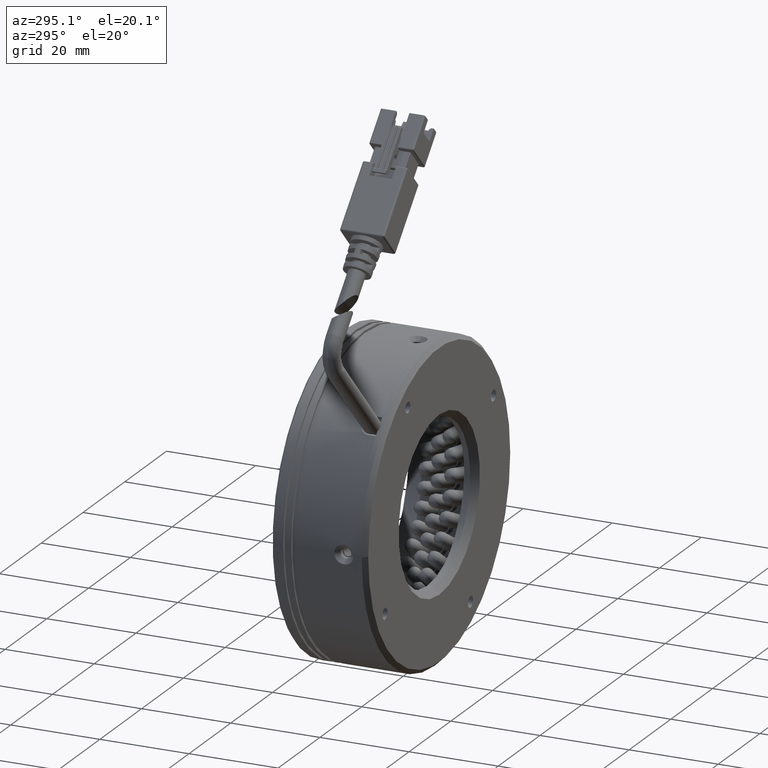
[diagram: clean part render]
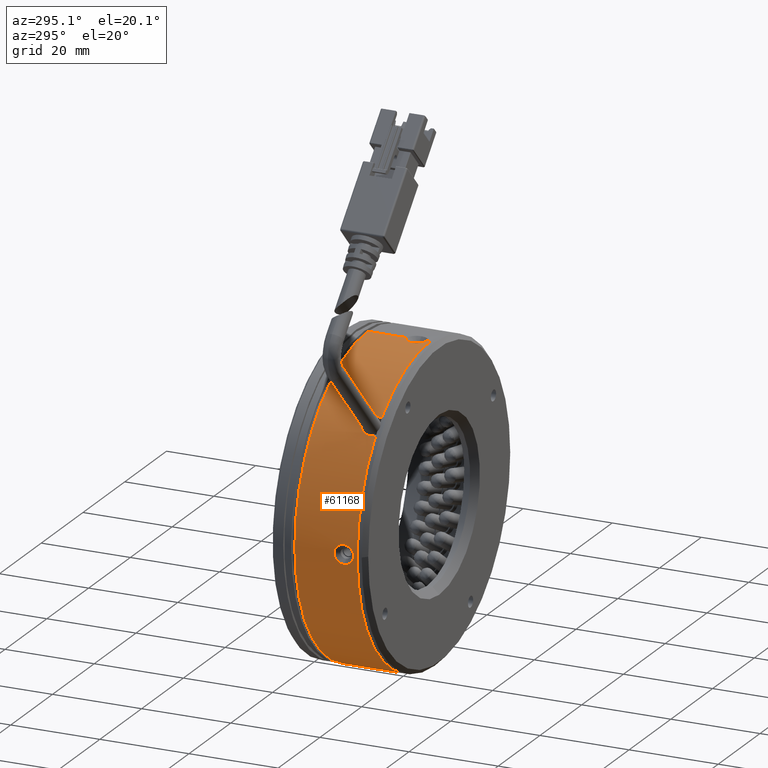
[diagram: same view with one face highlighted and labeled with its STEP entity id]
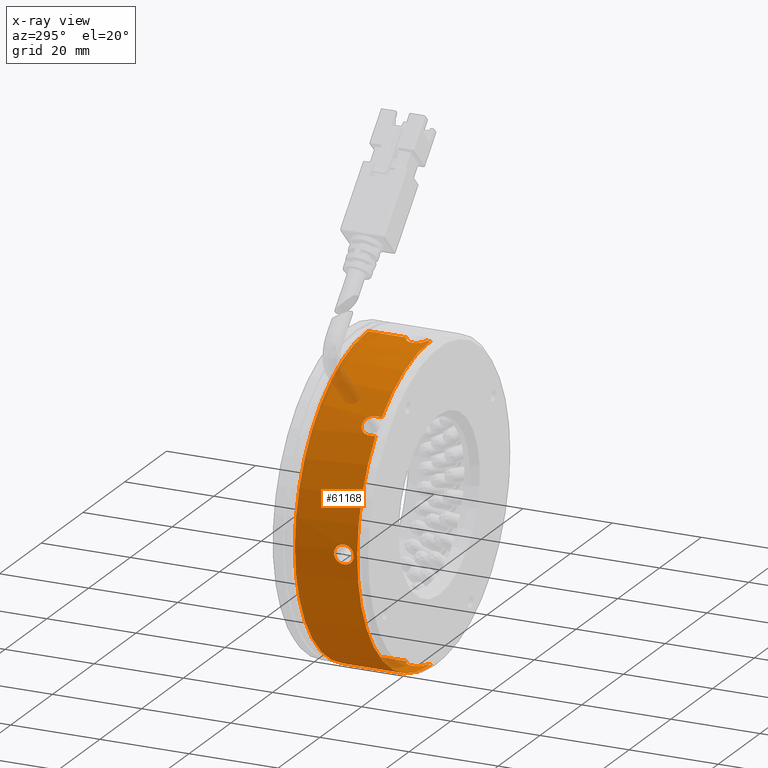
[diagram: x-ray of the same camera — body ghosted, the highlighted face saturated]
A machine part, auxiliary view. The second image highlights one B-rep face of the part: STEP entity #61168.
The next image is the same camera in x-ray: the body ghosted, the highlighted face saturated — about 4% of this face is hidden behind the body in this view.
In plain terms, the highlighted cylindrical surface (partial cylindrical patch) has radius 35 mm, axis along (-0, -1, -0).
Its self-contained STEP definition (entity closure, byte-faithful):
#425 = CARTESIAN_POINT ( 'NONE',  ( -62.36686726495298700, -21.10478920740880300, 11.24595865287460100 ) ) ;
#994 = CARTESIAN_POINT ( 'NONE',  ( -62.07319593178989700, -21.03700290820240700, 11.54561089932319900 ) ) ;
#1125 = CARTESIAN_POINT ( 'NONE',  ( -62.17191088425483500, -21.05049272272526700, 11.44567870108063400 ) ) ;
#1171 = CARTESIAN_POINT ( 'NONE',  ( -37.22376356038466100, -23.93693679049722800, -48.10242548494798600 ) ) ;
#1209 = CARTESIAN_POINT ( 'NONE',  ( -72.20782325663832100, -23.65190471292516600, -12.01498249379077500 ) ) ;
#1425 = CARTESIAN_POINT ( 'NONE',  ( -37.78478417546927700, -19.60932852830506700, -48.09820310293105200 ) ) ;
#1549 = CARTESIAN_POINT ( 'NONE',  ( -72.18648156479508800, -23.17898133300633700, -14.72045267900322300 ) ) ;
#1599 = CARTESIAN_POINT ( 'NONE',  ( -62.46222385914966000, -21.14567528577140400, 11.14705329127196600 ) ) ;
#1816 = CARTESIAN_POINT ( 'NONE',  ( -62.73295926011513000, -21.30475847788848800, 10.86316091381639400 ) ) ;
#1980 = DIRECTION ( 'NONE',  ( -0.0000000000000000000, -1.000000000000000000, -0.0000000000000000000 ) ) ;
#2971 = DIRECTION ( 'NONE',  ( 0.0000000000000000000, 1.000000000000000000, 0.0000000000000000000 ) ) ;
#3202 = AXIS2_PLACEMENT_3D ( 'NONE', #42261, #98484, #50412 ) ;
#3374 = CARTESIAN_POINT ( 'NONE',  ( -72.21701431307143100, -19.65340967446399400, -13.80181309716154400 ) ) ;
#3560 = CARTESIAN_POINT ( 'NONE',  ( -62.89871526194900000, -21.46354957633663900, 10.68491687128340800 ) ) ;
#3699 = CARTESIAN_POINT ( 'NONE',  ( -72.18228372277616200, -20.40594409998430000, -11.39722068191005100 ) ) ;
#3902 = CARTESIAN_POINT ( 'NONE',  ( -63.10334919014333400, -21.75970732235944300, 10.46147164486238700 ) ) ;
#4438 = EDGE_CURVE ( 'NONE', #41594, #62580, #21615, .T. ) ;
#4574 = CARTESIAN_POINT ( 'NONE',  ( -63.16560618559595500, -21.86996423252865500, 10.39283354219874600 ) ) ;
#4643 = ORIENTED_EDGE ( 'NONE', *, *, #87775, .T. ) ;
#4982 = VERTEX_POINT ( 'NONE', #1171 ) ;
#5155 = CARTESIAN_POINT ( 'NONE',  ( -37.22376356038465400, -19.53693679062221700, 21.89757451503732000 ) ) ;
#5171 = CARTESIAN_POINT ( 'NONE',  ( -37.36693760260140400, -19.53693679062221700, 21.89757451503732400 ) ) ;
#5244 = CARTESIAN_POINT ( 'NONE',  ( -37.50826264832228700, -19.55164704036117100, 21.89669610280887100 ) ) ;
#5379 = CARTESIAN_POINT ( 'NONE',  ( -37.78718050045569800, -19.60993350181382800, 21.89331729895741700 ) ) ;
#5390 = CARTESIAN_POINT ( 'NONE',  ( -63.27270425272988100, -22.10405653799697800, 10.27403884032229100 ) ) ;
#5494 = CARTESIAN_POINT ( 'NONE',  ( -37.22376356038465400, -10.73693679055960500, 21.89757451504468500 ) ) ;
#5587 = CARTESIAN_POINT ( 'NONE',  ( -37.92368686113864100, -19.65360307949746500, 21.89081440042952000 ) ) ;
#5614 = CARTESIAN_POINT ( 'NONE',  ( -63.31787781798403400, -22.22783951909080700, 10.22353156421552400 ) ) ;
#5709 = CARTESIAN_POINT ( 'NONE',  ( -38.31161495567853600, -19.82222505445712100, 21.88162088698194900 ) ) ;
#5742 = CARTESIAN_POINT ( 'NONE',  ( -63.46670918281704800, -23.18693679055961000, 10.05589494330667200 ) ) ;
#5837 = CARTESIAN_POINT ( 'NONE',  ( -38.54970370794844600, -19.98943390663248800, 21.87299322417172600 ) ) ;
#5851 = CARTESIAN_POINT ( 'NONE',  ( -38.84195110853834600, -20.29518929847126400, 21.86028288907399600 ) ) ;
#5943 = CARTESIAN_POINT ( 'NONE',  ( -38.93063235117443100, -20.40818297352575400, 21.85601341816057500 ) ) ;
#5989 = CIRCLE ( 'NONE', #3202, 35.00000000000000000 ) ;
#6080 = CARTESIAN_POINT ( 'NONE',  ( -39.08342530106762800, -20.64741546415481100, 21.84821842645350300 ) ) ;
#6104 = CARTESIAN_POINT ( 'NONE',  ( -39.14754193227397400, -20.77298257262449300, 21.84470323132021700 ) ) ;
#6219 = CARTESIAN_POINT ( 'NONE',  ( -39.25184992002358800, -21.03572116801038000, 21.83880509517631900 ) ) ;
#6341 = CARTESIAN_POINT ( 'NONE',  ( -37.36693760260142500, -23.93693679049722100, -48.10242548494799300 ) ) ;
#6420 = CARTESIAN_POINT ( 'NONE',  ( -39.29208258320425500, -21.17407173993537500, 21.83641770585191800 ) ) ;
#6449 = CARTESIAN_POINT ( 'NONE',  ( -63.39161402612113200, -22.48902644992799100, 10.14078154745030800 ) ) ;
#6539 = CARTESIAN_POINT ( 'NONE',  ( -39.35859563401581300, -21.73693679055961100, 21.83240658874149900 ) ) ;
#6875 = CARTESIAN_POINT ( 'NONE',  ( -39.35859563401579900, -21.59386895970070000, 21.83240658874150600 ) ) ;
#6894 = CARTESIAN_POINT ( 'NONE',  ( -39.34516963937911500, -21.45269998687595200, 21.83323456806186500 ) ) ;
#7009 = CARTESIAN_POINT ( 'NONE',  ( -63.41989359537929300, -22.62648436212026200, 10.10885547354302400 ) ) ;
#7286 = CARTESIAN_POINT ( 'NONE',  ( -39.29202359342004100, -22.30006405213177700, 21.83642122275134100 ) ) ;
#7474 = ORIENTED_EDGE ( 'NONE', *, *, #4438, .T. ) ;
#7581 = EDGE_CURVE ( 'NONE', #20734, #18021, #8403, .T. ) ;
#7844 = CARTESIAN_POINT ( 'NONE',  ( -63.46670918281704800, -23.18693679055961000, 10.05589494330667200 ) ) ;
#7892 = ORIENTED_EDGE ( 'NONE', *, *, #45822, .T. ) ;
#8403 = LINE ( 'NONE', #51275, #91482 ) ;
#9258 = CARTESIAN_POINT ( 'NONE',  ( -72.21951787287260100, -23.86414038986979200, -12.53979157595876400 ) ) ;
#9491 = CARTESIAN_POINT ( 'NONE',  ( -38.18185526177882100, -19.76574706337418200, -48.08955050626905600 ) ) ;
#9609 = CARTESIAN_POINT ( 'NONE',  ( -72.17449339993608200, -22.82934489499319500, -14.96047259074914700 ) ) ;
#9724 = EDGE_CURVE ( 'NONE', #43881, #18021, #87780, .T. ) ;
#10769 = B_SPLINE_CURVE_WITH_KNOTS ( 'NONE', 3,
 ( #49662, #97745, #41530, #1425, #57733, #9491, #65786, #17565, #73833, #25640, #81947, #33754, #90064, #41884, #98098, #50011 ),
 .UNSPECIFIED., .F., .F.,
 ( 4, 2, 2, 2, 2, 2, 2, 4 ),
 ( 0.006786052840743859800, 0.007210104708582166200, 0.007634156576420471700, 0.008058208444258778100, 0.008482260312097084400, 0.009330364047773681600, 0.009754415915611981000, 0.01017846778345028000 ),
 .UNSPECIFIED. ) ;
#11374 = CARTESIAN_POINT ( 'NONE',  ( -72.22288607844613800, -19.55163243285318600, -13.38667850832691600 ) ) ;
#11703 = CARTESIAN_POINT ( 'NONE',  ( -72.17089672165334900, -20.77281160615650500, -11.17872752636620800 ) ) ;
#13734 = CARTESIAN_POINT ( 'NONE',  ( -63.45719955681787600, -22.90314248807499800, 10.06668387137813000 ) ) ;
#13968 = CARTESIAN_POINT ( 'NONE',  ( -39.29208258320427700, -22.29980184118386800, -48.04126867576255900 ) ) ;
#14923 = CARTESIAN_POINT ( 'NONE',  ( -37.22376356038465400, -23.93693679049394900, 21.89757451504468500 ) ) ;
#15266 = CARTESIAN_POINT ( 'NONE',  ( -39.35859563401583500, -21.87997071529385100, 21.83240658874150200 ) ) ;
#15830 = CARTESIAN_POINT ( 'NONE',  ( -63.46670668935083600, -23.04381623783286800, 10.05589776889578800 ) ) ;
#16169 = EDGE_CURVE ( 'NONE', #45314, #71269, #65091, .T. ) ;
#17348 = CARTESIAN_POINT ( 'NONE',  ( -72.22375430103278400, -23.93678022324023800, -12.95856684094554900 ) ) ;
#17565 = CARTESIAN_POINT ( 'NONE',  ( -38.53830400992985300, -19.99768084738210700, -48.07792547411334300 ) ) ;
#17689 = CARTESIAN_POINT ( 'NONE',  ( -72.16204772927716200, -22.30695549506004800, -15.18262245712239400 ) ) ;
#18021 = VERTEX_POINT ( 'NONE', #73322 ) ;
#18469 = CARTESIAN_POINT ( 'NONE',  ( -72.15859563407818200, -21.73693679055961100, -15.23725755864029100 ) ) ;
#18647 = VECTOR ( 'NONE', #91846, 1000.000000000000000 ) ;
#19172 = CARTESIAN_POINT ( 'NONE',  ( -72.15942396432167500, -21.45264014967063200, -15.22382592607904600 ) ) ;
#19403 = EDGE_CURVE ( 'NONE', #92843, #20444, #102293, .T. ) ;
#19506 = CARTESIAN_POINT ( 'NONE',  ( -72.22377267242411800, -19.53678271417762600, -12.96310817783427000 ) ) ;
#19838 = CARTESIAN_POINT ( 'NONE',  ( -72.15859563407819600, -21.45071874979721100, -10.96759341127045700 ) ) ;
#19879 = EDGE_LOOP ( 'NONE', ( #103965, #97533 ) ) ;
#19921 = EDGE_CURVE ( 'NONE', #32918, #70143, #10769, .T. ) ;
#20444 = VERTEX_POINT ( 'NONE', #74103 ) ;
#20734 = VERTEX_POINT ( 'NONE', #5494 ) ;
#20822 = ORIENTED_EDGE ( 'NONE', *, *, #78314, .T. ) ;
#21220 = VECTOR ( 'NONE', #94132, 1000.000000000000000 ) ;
#21380 = CYLINDRICAL_SURFACE ( 'NONE', #54146, 35.00000000000000000 ) ;
#21615 = B_SPLINE_CURVE_WITH_KNOTS ( 'NONE', 3,
 ( #7844, #15830, #13734, #7009, #6449, #5614, #5390, #4574, #3902, #3560, #1816, #1599, #425, #1125, #994, #94907, #99666, #95372, #90930, #88485, #87036, #86549, #99549, #56889, #90337, #96870, #90467, #54909, #56971, #88375, #83398, #93894 ),
 .UNSPECIFIED., .F., .F.,
 ( 4, 2, 2, 2, 2, 2, 2, 2, 2, 2, 2, 2, 2, 2, 2, 4 ),
 ( 3.469446951953614200E-018, 0.0004232750302415223700, 0.0008465500604830412700, 0.001269825090724560100, 0.001693100120966079100, 0.002539650181449116600, 0.002962925211690648900, 0.003386200241932181600, 0.003809475272173714200, 0.004232750302415246000, 0.004656025332656779100, 0.005079300362898311400, 0.005502575393139844500, 0.005925850423381375800, 0.006349125453622908900, 0.006772400483864441200 ),
 .UNSPECIFIED. ) ;
#22060 = ORIENTED_EDGE ( 'NONE', *, *, #19921, .T. ) ;
#22105 = CARTESIAN_POINT ( 'NONE',  ( -39.14754193227398100, -22.70089100849475400, -48.04955420123086200 ) ) ;
#22445 = CARTESIAN_POINT ( 'NONE',  ( -37.22376356038465400, -24.73693679055960400, 21.89757451504468500 ) ) ;
#23055 = CARTESIAN_POINT ( 'NONE',  ( -37.78478417546926200, -23.86454505281397300, 21.89335213302042900 ) ) ;
#25069 = CARTESIAN_POINT ( 'NONE',  ( -72.16260842407425000, -22.29991913465412900, -11.03413457653737800 ) ) ;
#25407 = CARTESIAN_POINT ( 'NONE',  ( -72.22289348338740900, -23.92236321493013000, -13.38539441595342300 ) ) ;
#25640 = CARTESIAN_POINT ( 'NONE',  ( -38.93929322558240400, -20.39695524279627700, -48.06090183398669100 ) ) ;
#25757 = CARTESIAN_POINT ( 'NONE',  ( -72.15859563407818200, -21.73693679055961100, -15.23725755864029100 ) ) ;
#26188 = AXIS2_PLACEMENT_3D ( 'NONE', #51188, #2971, #59237 ) ;
#27232 = CARTESIAN_POINT ( 'NONE',  ( -72.16499678584072800, -21.03557701360143600, -15.13046681790700600 ) ) ;
#27434 = ORIENTED_EDGE ( 'NONE', *, *, #64711, .T. ) ;
#27575 = CARTESIAN_POINT ( 'NONE',  ( -72.21955972410485500, -19.60900568356251800, -12.54258832069828800 ) ) ;
#30230 = CARTESIAN_POINT ( 'NONE',  ( -38.93063235117442400, -23.06569060759352400, -48.06086438807119500 ) ) ;
#31040 = EDGE_CURVE ( 'NONE', #70143, #4982, #63292, .T. ) ;
#31082 = CARTESIAN_POINT ( 'NONE',  ( -63.46670918281706300, -10.10550973775694800, 10.05589494330666500 ) ) ;
#31175 = CARTESIAN_POINT ( 'NONE',  ( -38.18185526177880000, -23.70812651774490500, 21.88469953635841100 ) ) ;
#31331 = CARTESIAN_POINT ( 'NONE',  ( -37.22376356038466100, -10.73693679055960500, -13.10242548495532100 ) ) ;
#31453 = CARTESIAN_POINT ( 'NONE',  ( -37.22376356038466100, -10.10550973775694800, -48.10242548495532600 ) ) ;
#32918 = VERTEX_POINT ( 'NONE', #48412 ) ;
#33192 = CARTESIAN_POINT ( 'NONE',  ( -72.17089713113424000, -22.70108090721028700, -11.17873472184791200 ) ) ;
#33525 = CARTESIAN_POINT ( 'NONE',  ( -72.21711558241885600, -23.82228406859660200, -13.79705055274044900 ) ) ;
#33754 = CARTESIAN_POINT ( 'NONE',  ( -39.25181313723114600, -21.03561704515745100, -48.04365818202710900 ) ) ;
#34291 = CARTESIAN_POINT ( 'NONE',  ( -60.38208398864672000, -10.10550973775694800, 13.14052013747701200 ) ) ;
#35108 = VERTEX_POINT ( 'NONE', #104072 ) ;
#35353 = CARTESIAN_POINT ( 'NONE',  ( -72.17441359463730100, -20.64720504933453800, -14.96197346467865000 ) ) ;
#35700 = CARTESIAN_POINT ( 'NONE',  ( -72.21092947146236400, -19.76496629095659700, -12.14565423040928100 ) ) ;
#37115 = B_SPLINE_CURVE_WITH_KNOTS ( 'NONE', 3,
 ( #14923, #63221, #71234, #23055, #79328, #31175, #87491, #39299, #95512, #47414, #103643, #55507, #7286, #63572, #15266, #71592 ),
 .UNSPECIFIED., .F., .F.,
 ( 4, 2, 2, 2, 2, 2, 2, 4 ),
 ( 0.006786052840742668900, 0.007210104708580961400, 0.007634156576419253900, 0.008058208444257546400, 0.008482260312095838900, 0.009330364047772411700, 0.009754415915610692100, 0.01017846778344897400 ),
 .UNSPECIFIED. ) ;
#37823 = CARTESIAN_POINT ( 'NONE',  ( -39.35859563401581300, -21.73693679055961100, -48.03725755865213600 ) ) ;
#38340 = CARTESIAN_POINT ( 'NONE',  ( -38.54970370794845300, -23.48443967448682600, -48.07784419408235300 ) ) ;
#38697 = DIRECTION ( 'NONE',  ( -0.0000000000000000000, -1.000000000000000000, -0.0000000000000000000 ) ) ;
#39299 = CARTESIAN_POINT ( 'NONE',  ( -38.53830400992985300, -23.47619273373700100, 21.87307450420270200 ) ) ;
#39455 = DIRECTION ( 'NONE',  ( 0.0000000000000000000, 0.0000000000000000000, -1.000000000000000000 ) ) ;
#40975 = CARTESIAN_POINT ( 'NONE',  ( -60.38208398864672700, -24.73693679055960400, 13.14052013747700400 ) ) ;
#41304 = CARTESIAN_POINT ( 'NONE',  ( -72.18221120800826900, -23.06593643704891200, -11.39573436642867700 ) ) ;
#41530 = CARTESIAN_POINT ( 'NONE',  ( -37.50771075228001200, -19.55163702838384100, -48.10154789123254900 ) ) ;
#41594 = VERTEX_POINT ( 'NONE', #5742 ) ;
#41652 = CARTESIAN_POINT ( 'NONE',  ( -72.20726029983367800, -23.63935705196449900, -14.18334307208186500 ) ) ;
#41884 = CARTESIAN_POINT ( 'NONE',  ( -39.34517581350775100, -21.45268504110900300, -48.03808518791749500 ) ) ;
#42261 = CARTESIAN_POINT ( 'NONE',  ( -37.22376356038466100, -24.73693679055960400, -13.10242548495532100 ) ) ;
#42649 = VERTEX_POINT ( 'NONE', #90860 ) ;
#43433 = CARTESIAN_POINT ( 'NONE',  ( -72.18648179265486000, -20.29493512210366600, -14.72040224884976200 ) ) ;
#43760 = CARTESIAN_POINT ( 'NONE',  ( -72.19933629333510800, -19.99615954029330600, -11.78989398007965800 ) ) ;
#43881 = VERTEX_POINT ( 'NONE', #45881 ) ;
#45314 = VERTEX_POINT ( 'NONE', #40975 ) ;
#45822 = EDGE_CURVE ( 'NONE', #57649, #42649, #5989, .T. ) ;
#45881 = CARTESIAN_POINT ( 'NONE',  ( -39.35859563401581300, -21.73693679055961100, 21.83240658874149900 ) ) ;
#46088 = CARTESIAN_POINT ( 'NONE',  ( -39.35859563401581300, -21.73693679055961100, -48.03725755865213600 ) ) ;
#46281 = AXIS2_PLACEMENT_3D ( 'NONE', #31331, #87640, #39455 ) ;
#46447 = CARTESIAN_POINT ( 'NONE',  ( -37.92368686113866300, -23.82027050162193000, -48.09566537034015700 ) ) ;
#47414 = CARTESIAN_POINT ( 'NONE',  ( -38.93929322558239600, -23.07691833832288700, 21.85605086407608500 ) ) ;
#48412 = CARTESIAN_POINT ( 'NONE',  ( -37.22376356038466100, -19.53693679062502800, -48.10242548495532600 ) ) ;
#48756 = B_SPLINE_CURVE_WITH_KNOTS ( 'NONE', 3,
 ( #18469, #99351, #19172, #75438, #27232, #83539, #35353, #91631, #43433, #99687, #51600, #3374, #59616, #11374, #67691, #19506, #75793, #27575, #83894, #35700, #91997, #43760, #100042, #51948, #3699, #59972, #11703, #68032, #19838, #76143 ),
 .UNSPECIFIED., .F., .F.,
 ( 4, 2, 2, 2, 2, 2, 2, 2, 2, 2, 2, 2, 2, 2, 4 ),
 ( 0.0000000000000000000, 0.0004250800221460684400, 0.0008501600442921368900, 0.001275240066438205400, 0.001700320088584273800, 0.002550480132876414200, 0.002975560155022483100, 0.003400640177168551000, 0.003825720199314619800, 0.004250800221460688200, 0.004675880243606756600, 0.005100960265752824100, 0.005526040287898893400, 0.005951120310044961800, 0.006801280354337099400 ),
 .UNSPECIFIED. ) ;
#48868 = EDGE_CURVE ( 'NONE', #20444, #92843, #48756, .T. ) ;
#49452 = CARTESIAN_POINT ( 'NONE',  ( -72.19919487424323300, -23.48470876480094900, -11.77680698778632400 ) ) ;
#49616 = VECTOR ( 'NONE', #1980, 1000.000000000000000 ) ;
#49662 = CARTESIAN_POINT ( 'NONE',  ( -37.22376356038466100, -19.53693679062502800, -48.10242548495532600 ) ) ;
#49774 = CARTESIAN_POINT ( 'NONE',  ( -72.19501834864802000, -23.38420782504768900, -14.52404455874787800 ) ) ;
#50011 = CARTESIAN_POINT ( 'NONE',  ( -39.35859563401581300, -21.73693679055961100, -48.03725755865213600 ) ) ;
#50412 = DIRECTION ( 'NONE',  ( 0.0000000000000000000, 0.0000000000000000000, -1.000000000000000000 ) ) ;
#51188 = CARTESIAN_POINT ( 'NONE',  ( -37.22376356038466100, -24.73693679055960400, -13.10242548495532100 ) ) ;
#51275 = CARTESIAN_POINT ( 'NONE',  ( -37.22376356038465400, -10.10550973775694800, 21.89757451504468500 ) ) ;
#51600 = CARTESIAN_POINT ( 'NONE',  ( -72.20782325663830600, -19.82196886819406200, -14.18986847612012000 ) ) ;
#51948 = CARTESIAN_POINT ( 'NONE',  ( -72.18648156479511600, -20.29489224811288400, -11.48439829090766500 ) ) ;
#52793 = ORIENTED_EDGE ( 'NONE', *, *, #103116, .T. ) ;
#53865 = CARTESIAN_POINT ( 'NONE',  ( -39.35859563401579900, -21.88000462141851100, -48.03725755865214400 ) ) ;
#54101 = CARTESIAN_POINT ( 'NONE',  ( -37.22376356038465400, -10.10550973775694800, 21.89757451504468500 ) ) ;
#54146 = AXIS2_PLACEMENT_3D ( 'NONE', #54919, #38697, #103395 ) ;
#54577 = CARTESIAN_POINT ( 'NONE',  ( -37.50826264832232900, -23.92222654075826000, -48.10154707271952600 ) ) ;
#54909 = CARTESIAN_POINT ( 'NONE',  ( -60.46704248962336000, -22.48873220437680900, 13.06536134960385800 ) ) ;
#54919 = CARTESIAN_POINT ( 'NONE',  ( -37.22376356038466100, -10.10550973775694800, -13.10242548495532100 ) ) ;
#55507 = CARTESIAN_POINT ( 'NONE',  ( -39.25181313723115300, -22.43825653596173800, 21.83880721211647800 ) ) ;
#56889 = CARTESIAN_POINT ( 'NONE',  ( -60.78727205667542000, -21.76012516140734100, 12.77751912012268300 ) ) ;
#56971 = CARTESIAN_POINT ( 'NONE',  ( -60.43565855911648300, -22.62342447067121800, 13.09316072851225100 ) ) ;
#57502 = CARTESIAN_POINT ( 'NONE',  ( -72.21701431307141700, -23.82046390665523500, -12.40303787274934400 ) ) ;
#57649 = VERTEX_POINT ( 'NONE', #60311 ) ;
#57733 = CARTESIAN_POINT ( 'NONE',  ( -37.92225923372048200, -19.65305799211099100, -48.09569570595137800 ) ) ;
#57839 = CARTESIAN_POINT ( 'NONE',  ( -72.18228372277613400, -23.06792948113492200, -14.80763028800083500 ) ) ;
#59237 = DIRECTION ( 'NONE',  ( 0.0000000000000000000, 0.0000000000000000000, -1.000000000000000000 ) ) ;
#59616 = CARTESIAN_POINT ( 'NONE',  ( -72.21951787287260100, -19.60973319124941800, -13.66505939395210800 ) ) ;
#59972 = CARTESIAN_POINT ( 'NONE',  ( -72.17449339993611100, -20.64452868612601900, -11.24437837916172900 ) ) ;
#60311 = CARTESIAN_POINT ( 'NONE',  ( -37.22376356038466100, -24.73693679055960400, -48.10242548495532600 ) ) ;
#61168 = ADVANCED_FACE ( 'NONE', ( #71742, #74301 ), #21380, .T. ) ;
#62247 = CARTESIAN_POINT ( 'NONE',  ( -39.34516963937911500, -22.02117359424328000, -48.03808553797249200 ) ) ;
#62580 = VERTEX_POINT ( 'NONE', #90665 ) ;
#62614 = CARTESIAN_POINT ( 'NONE',  ( -37.22376356038466100, -23.93693679049722800, -48.10242548494798600 ) ) ;
#63105 = ORIENTED_EDGE ( 'NONE', *, *, #7581, .F. ) ;
#63221 = CARTESIAN_POINT ( 'NONE',  ( -37.36691250539988800, -23.93693679049393100, 21.89757451504468100 ) ) ;
#63292 = B_SPLINE_CURVE_WITH_KNOTS ( 'NONE', 3,
 ( #46088, #53865, #62247, #13968, #70287, #22105, #78402, #30230, #86566, #38340, #94580, #46447, #102663, #54577, #6341, #62614 ),
 .UNSPECIFIED., .F., .F.,
 ( 4, 2, 2, 2, 2, 2, 2, 4 ),
 ( 0.01017846778345028000, 0.01060262017258274900, 0.01102677256171521800, 0.01145092495084768700, 0.01187507733998015600, 0.01272338211824509300, 0.01314753450737757500, 0.01357168689651005500 ),
 .UNSPECIFIED. ) ;
#63572 = CARTESIAN_POINT ( 'NONE',  ( -39.34517581350775800, -22.02118854001020100, 21.83323421800685100 ) ) ;
#64711 = EDGE_CURVE ( 'NONE', #62580, #45314, #92341, .T. ) ;
#65091 = CIRCLE ( 'NONE', #26188, 35.00000000000000000 ) ;
#65226 = CARTESIAN_POINT ( 'NONE',  ( -72.15942396432168900, -22.02123343144859300, -10.98102504383183500 ) ) ;
#65578 = CARTESIAN_POINT ( 'NONE',  ( -72.22288607844613800, -23.92224114826604600, -12.81817246158397700 ) ) ;
#65786 = CARTESIAN_POINT ( 'NONE',  ( -38.30506477950064000, -19.83466621484901200, -48.08591307208164500 ) ) ;
#65901 = CARTESIAN_POINT ( 'NONE',  ( -72.17089672165334900, -22.70106197496271600, -15.02612344354467800 ) ) ;
#67691 = CARTESIAN_POINT ( 'NONE',  ( -72.22375430103278400, -19.53709335787899800, -13.24628412896535000 ) ) ;
#68027 = ORIENTED_EDGE ( 'NONE', *, *, #16169, .T. ) ;
#68032 = CARTESIAN_POINT ( 'NONE',  ( -72.16204772927714800, -21.16691808605916200, -11.02222851278849600 ) ) ;
#68913 = EDGE_LOOP ( 'NONE', ( #63105, #4643, #52793, #22060, #81357, #20822, #7892, #101611, #7474, #27434, #68027, #90747, #90050, #99294 ) ) ;
#69733 = CARTESIAN_POINT ( 'NONE',  ( -37.22376356038466100, -10.73693679055960500, -48.10242548495532600 ) ) ;
#70143 = VERTEX_POINT ( 'NONE', #37823 ) ;
#70287 = CARTESIAN_POINT ( 'NONE',  ( -39.25184992002360200, -22.43815241310885600, -48.04365606508695000 ) ) ;
#71234 = CARTESIAN_POINT ( 'NONE',  ( -37.50771075228000500, -23.92223655273517100, 21.89669692132190800 ) ) ;
#71269 = VERTEX_POINT ( 'NONE', #22445 ) ;
#71592 = CARTESIAN_POINT ( 'NONE',  ( -39.35859563401581300, -21.73693679055961100, 21.83240658874149900 ) ) ;
#71742 = FACE_OUTER_BOUND ( 'NONE', #68913, .T. ) ;
#73272 = CARTESIAN_POINT ( 'NONE',  ( -72.15859563407819600, -21.73693679055961100, -10.96759341127059500 ) ) ;
#73322 = CARTESIAN_POINT ( 'NONE',  ( -37.22376356038465400, -19.53693679062221700, 21.89757451503732000 ) ) ;
#73604 = CARTESIAN_POINT ( 'NONE',  ( -72.22377267242414700, -23.93709086694159200, -13.24174279207660900 ) ) ;
#73833 = CARTESIAN_POINT ( 'NONE',  ( -38.64674033459721900, -20.09099346710828000, -48.07362313058281700 ) ) ;
#73953 = CARTESIAN_POINT ( 'NONE',  ( -72.15859563407822500, -22.02311134410741300, -15.23725755864028700 ) ) ;
#74103 = CARTESIAN_POINT ( 'NONE',  ( -72.15859563407818200, -21.73693679055961100, -15.23725755864029100 ) ) ;
#74301 = FACE_BOUND ( 'NONE', #19879, .T. ) ;
#75438 = CARTESIAN_POINT ( 'NONE',  ( -72.16260842407423600, -21.17395444646508600, -15.17071639337350500 ) ) ;
#75793 = CARTESIAN_POINT ( 'NONE',  ( -72.22289348338740900, -19.55151036618909200, -12.81945655395746400 ) ) ;
#76143 = CARTESIAN_POINT ( 'NONE',  ( -72.15859563407819600, -21.73693679055961100, -10.96759341127059500 ) ) ;
#78314 = EDGE_CURVE ( 'NONE', #4982, #57649, #80309, .T. ) ;
#78402 = CARTESIAN_POINT ( 'NONE',  ( -39.08342530106762100, -22.82645811696445300, -48.05306939636411600 ) ) ;
#78682 = VECTOR ( 'NONE', #79601, 1000.000000000000000 ) ;
#79328 = CARTESIAN_POINT ( 'NONE',  ( -37.92225923372046700, -23.82081558900806300, 21.89084473604073000 ) ) ;
#79601 = DIRECTION ( 'NONE',  ( -0.0000000000000000000, -1.000000000000000000, -0.0000000000000000000 ) ) ;
#80309 = LINE ( 'NONE', #84108, #18647 ) ;
#80807 = CARTESIAN_POINT ( 'NONE',  ( -72.15859563407819600, -21.73693679055961100, -10.96759341127059500 ) ) ;
#81357 = ORIENTED_EDGE ( 'NONE', *, *, #31040, .T. ) ;
#81378 = CARTESIAN_POINT ( 'NONE',  ( -72.16499678584074200, -22.43829656751779600, -11.07438415200388200 ) ) ;
#81614 = EDGE_CURVE ( 'NONE', #42649, #41594, #94124, .T. ) ;
#81729 = CARTESIAN_POINT ( 'NONE',  ( -72.21955972410486900, -23.86486789755669200, -13.66226264921260400 ) ) ;
#81947 = CARTESIAN_POINT ( 'NONE',  ( -39.09538724856667400, -20.64163448882672100, -48.05250323419785700 ) ) ;
#83398 = CARTESIAN_POINT ( 'NONE',  ( -60.38208664764511000, -23.04381150168661200, 13.14051779102027100 ) ) ;
#83539 = CARTESIAN_POINT ( 'NONE',  ( -72.17089713113418300, -20.77279267390894900, -15.02611624806297600 ) ) ;
#83894 = CARTESIAN_POINT ( 'NONE',  ( -72.21711558241889900, -19.65158951252261900, -12.40780041717043300 ) ) ;
#84108 = CARTESIAN_POINT ( 'NONE',  ( -37.22376356038466100, -10.10550973775694800, -48.10242548495532600 ) ) ;
#85484 = LINE ( 'NONE', #54101, #21220 ) ;
#86180 = VERTEX_POINT ( 'NONE', #69733 ) ;
#86549 = CARTESIAN_POINT ( 'NONE',  ( -61.01926810152916400, -21.47209980179826500, 12.56443864438607100 ) ) ;
#86566 = CARTESIAN_POINT ( 'NONE',  ( -38.84195110853836800, -23.17868428264803200, -48.06513385898462300 ) ) ;
#86660 = CIRCLE ( 'NONE', #46281, 35.00000000000000000 ) ;
#87036 = CARTESIAN_POINT ( 'NONE',  ( -61.19195739857615700, -21.31782239801181700, 12.40325299526902800 ) ) ;
#87395 = DIRECTION ( 'NONE',  ( 0.0000000000000000000, 1.000000000000000000, 0.0000000000000000000 ) ) ;
#87491 = CARTESIAN_POINT ( 'NONE',  ( -38.30506477950060400, -23.63920736627007500, 21.88106210217100800 ) ) ;
#87640 = DIRECTION ( 'NONE',  ( -0.0000000000000000000, -1.000000000000000000, -0.0000000000000000000 ) ) ;
#87775 = EDGE_CURVE ( 'NONE', #20734, #86180, #86660, .T. ) ;
#87780 = B_SPLINE_CURVE_WITH_KNOTS ( 'NONE', 3,
 ( #6539, #6875, #6894, #6420, #6219, #6104, #6080, #5943, #5851, #5837, #5709, #5587, #5379, #5244, #5171, #5155 ),
 .UNSPECIFIED., .F., .F.,
 ( 4, 2, 2, 2, 2, 2, 2, 4 ),
 ( 0.01017846778344897400, 0.01060262017258143200, 0.01102677256171389000, 0.01145092495084634700, 0.01187507733997880500, 0.01272338211824372900, 0.01314753450737617800, 0.01357168689650862900 ),
 .UNSPECIFIED. ) ;
#88375 = CARTESIAN_POINT ( 'NONE',  ( -60.39311792706755000, -22.90058625625215100, 13.13079438471443400 ) ) ;
#88485 = CARTESIAN_POINT ( 'NONE',  ( -61.28459419532737200, -21.25126257938271500, 12.31594883875027500 ) ) ;
#89509 = CARTESIAN_POINT ( 'NONE',  ( -72.17441359463734300, -22.82666853178469800, -11.24287750523224400 ) ) ;
#89842 = CARTESIAN_POINT ( 'NONE',  ( -72.21092947146233600, -23.70890729016263200, -14.05919673950158500 ) ) ;
#90050 = ORIENTED_EDGE ( 'NONE', *, *, #95318, .T. ) ;
#90064 = CARTESIAN_POINT ( 'NONE',  ( -39.29202359342004100, -21.17380952898742300, -48.04127219266198500 ) ) ;
#90337 = CARTESIAN_POINT ( 'NONE',  ( -60.71984682048545100, -21.86862348772203600, 12.83866978372840800 ) ) ;
#90467 = CARTESIAN_POINT ( 'NONE',  ( -60.54995429406810800, -22.22716761358990200, 12.99148010729247100 ) ) ;
#90665 = CARTESIAN_POINT ( 'NONE',  ( -60.38208398864672700, -23.18693679055961000, 13.14052013747701200 ) ) ;
#90747 = ORIENTED_EDGE ( 'NONE', *, *, #100449, .F. ) ;
#90860 = CARTESIAN_POINT ( 'NONE',  ( -63.46670918281706300, -24.73693679055960400, 10.05589494330665800 ) ) ;
#90930 = CARTESIAN_POINT ( 'NONE',  ( -61.47508772277452500, -21.14476724911269300, 12.13426606671402100 ) ) ;
#91482 = VECTOR ( 'NONE', #104264, 1000.000000000000000 ) ;
#91631 = CARTESIAN_POINT ( 'NONE',  ( -72.18221120800826900, -20.40793714407030600, -14.80911660348220800 ) ) ;
#91633 = VECTOR ( 'NONE', #87395, 1000.000000000000000 ) ;
#91846 = DIRECTION ( 'NONE',  ( -0.0000000000000000000, -1.000000000000000000, -0.0000000000000000000 ) ) ;
#91997 = CARTESIAN_POINT ( 'NONE',  ( -72.20726029983364900, -19.83451652915473300, -12.02150789782902700 ) ) ;
#92341 = LINE ( 'NONE', #34291, #49616 ) ;
#92843 = VERTEX_POINT ( 'NONE', #80807 ) ;
#93894 = CARTESIAN_POINT ( 'NONE',  ( -60.38208398864672700, -23.18693679055961000, 13.14052013747701200 ) ) ;
#94124 = LINE ( 'NONE', #31082, #91633 ) ;
#94132 = DIRECTION ( 'NONE',  ( -0.0000000000000000000, -1.000000000000000000, -0.0000000000000000000 ) ) ;
#94580 = CARTESIAN_POINT ( 'NONE',  ( -38.31161495567856400, -23.65164852666222100, -48.08647185689260100 ) ) ;
#94907 = CARTESIAN_POINT ( 'NONE',  ( -61.87326793978870400, -21.03687121118271700, 11.74555070288544700 ) ) ;
#95318 = EDGE_CURVE ( 'NONE', #35108, #43881, #37115, .T. ) ;
#95372 = CARTESIAN_POINT ( 'NONE',  ( -61.57245067993877500, -21.10473217463752200, 12.04038085768050700 ) ) ;
#95512 = CARTESIAN_POINT ( 'NONE',  ( -38.64674033459720400, -23.38288011401085200, 21.86877216067218300 ) ) ;
#96870 = CARTESIAN_POINT ( 'NONE',  ( -60.60145859948127600, -22.10135303487812700, 12.94540987546400500 ) ) ;
#97176 = CARTESIAN_POINT ( 'NONE',  ( -72.15859563407821000, -21.88003493872553000, -10.96759341127066500 ) ) ;
#97517 = CARTESIAN_POINT ( 'NONE',  ( -72.18648179265486000, -23.17893845901557300, -11.48444872106112900 ) ) ;
#97533 = ORIENTED_EDGE ( 'NONE', *, *, #48868, .T. ) ;
#97745 = CARTESIAN_POINT ( 'NONE',  ( -37.36691250540036400, -19.53693679062509500, -48.10242548495533300 ) ) ;
#97877 = CARTESIAN_POINT ( 'NONE',  ( -72.19933629333510800, -23.47771404082590500, -14.41495698983122500 ) ) ;
#98098 = CARTESIAN_POINT ( 'NONE',  ( -39.35859563401586300, -21.59390286582536000, -48.03725755865214400 ) ) ;
#98484 = DIRECTION ( 'NONE',  ( 0.0000000000000000000, 1.000000000000000000, 0.0000000000000000000 ) ) ;
#99294 = ORIENTED_EDGE ( 'NONE', *, *, #9724, .T. ) ;
#99351 = CARTESIAN_POINT ( 'NONE',  ( -72.15859563407821000, -21.59383864239477500, -15.23725755864028200 ) ) ;
#99549 = CARTESIAN_POINT ( 'NONE',  ( -60.93815582973164200, -21.56033681113305900, 12.63933173385570400 ) ) ;
#99666 = CARTESIAN_POINT ( 'NONE',  ( -61.77115033680624400, -21.05066216474871500, 11.84642374056994600 ) ) ;
#99687 = CARTESIAN_POINT ( 'NONE',  ( -72.19919487424317600, -19.98916481631826200, -14.42804398212456000 ) ) ;
#100042 = CARTESIAN_POINT ( 'NONE',  ( -72.19501834864802000, -20.08966575607153300, -11.68080641116300100 ) ) ;
#100092 = LINE ( 'NONE', #31453, #78682 ) ;
#100449 = EDGE_CURVE ( 'NONE', #35108, #71269, #85484, .T. ) ;
#101611 = ORIENTED_EDGE ( 'NONE', *, *, #81614, .T. ) ;
#102293 = B_SPLINE_CURVE_WITH_KNOTS ( 'NONE', 3,
 ( #73272, #97176, #65226, #25069, #81378, #33192, #89509, #41304, #97517, #49452, #1209, #57502, #9258, #65578, #17348, #73604, #25407, #81729, #33525, #89842, #41652, #97877, #49774, #1549, #57839, #9609, #65901, #17689, #73953, #25757 ),
 .UNSPECIFIED., .F., .F.,
 ( 4, 2, 2, 2, 2, 2, 2, 2, 2, 2, 2, 2, 2, 2, 4 ),
 ( 0.006801280354337099400, 0.007226328082486637900, 0.007651375810636176400, 0.008076423538785714900, 0.008501471266935253400, 0.009351566723234333900, 0.009776614451383877600, 0.01020166217953342100, 0.01062670990768296500, 0.01105175763583251100, 0.01147680536398205200, 0.01190185309213159800, 0.01232690082028114000, 0.01275194854843068500, 0.01360204400472976200 ),
 .UNSPECIFIED. ) ;
#102663 = CARTESIAN_POINT ( 'NONE',  ( -37.78718050045571900, -23.86394007930558900, -48.09816826886805800 ) ) ;
#103116 = EDGE_CURVE ( 'NONE', #86180, #32918, #100092, .T. ) ;
#103395 = DIRECTION ( 'NONE',  ( 0.0000000000000000000, 0.0000000000000000000, -1.000000000000000000 ) ) ;
#103643 = CARTESIAN_POINT ( 'NONE',  ( -39.09538724856667400, -22.83223909229244700, 21.84765226428723800 ) ) ;
#103965 = ORIENTED_EDGE ( 'NONE', *, *, #19403, .T. ) ;
#104072 = CARTESIAN_POINT ( 'NONE',  ( -37.22376356038465400, -23.93693679049394900, 21.89757451504468500 ) ) ;
#104264 = DIRECTION ( 'NONE',  ( -0.0000000000000000000, -1.000000000000000000, -0.0000000000000000000 ) ) ;